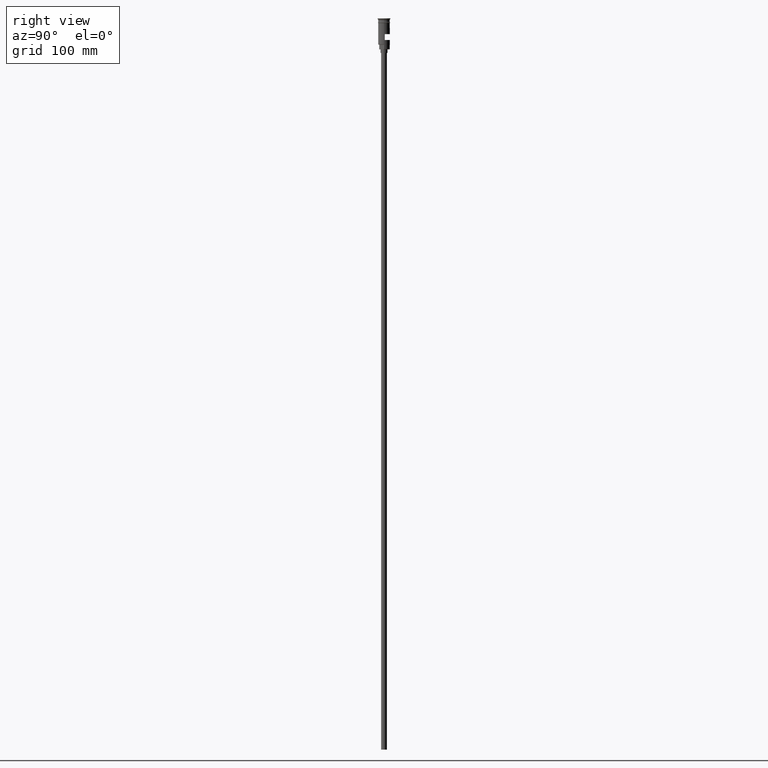
[diagram: clean part render]
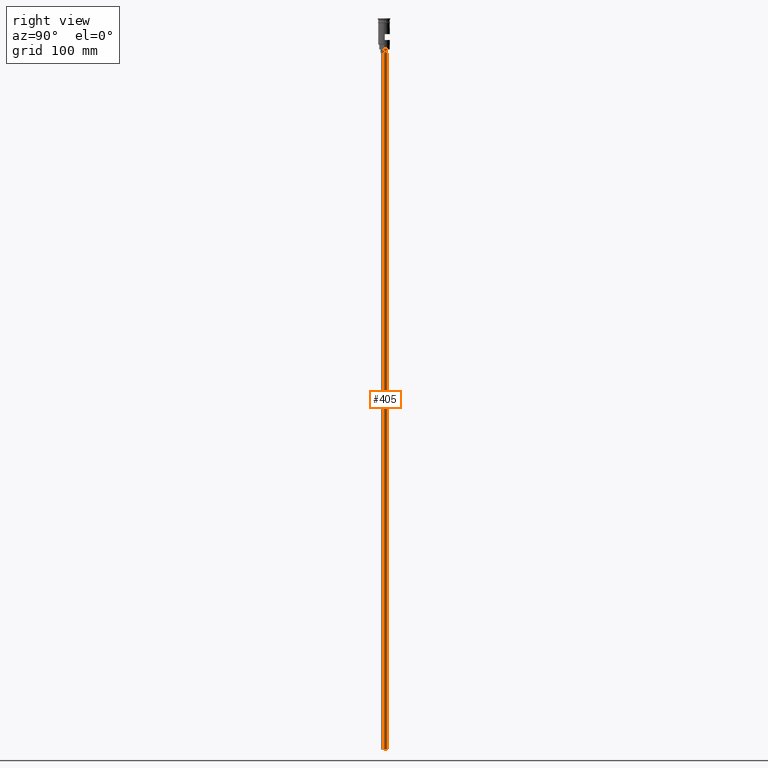
[diagram: same view with one face highlighted and labeled with its STEP entity id]
A machine part, right view. The second image highlights one B-rep face of the part: STEP entity #405.
In plain terms, the highlighted cylindrical surface (edge-blend (fillet) strip) has radius 2.5 mm, axis along (-0, -0, 1).
Its self-contained STEP definition (entity closure, byte-faithful):
#39 = DIRECTION ( 'NONE',  ( -1.000000000000000000, 0.000000000000000000, 0.000000000000000000 ) ) ;
#89 = ORIENTED_EDGE ( 'NONE', *, *, #1588, .F. ) ;
#100 = DIRECTION ( 'NONE',  ( -0.000000000000000000, -0.000000000000000000, 1.000000000000000000 ) ) ;
#105 = DIRECTION ( 'NONE',  ( -0.000000000000000000, -0.000000000000000000, 1.000000000000000000 ) ) ;
#227 = VERTEX_POINT ( 'NONE', #1146 ) ;
#243 = DIRECTION ( 'NONE',  ( -1.000000000000000000, 0.000000000000000000, 0.000000000000000000 ) ) ;
#307 = EDGE_LOOP ( 'NONE', ( #468, #1065, #1552, #89 ) ) ;
#405 = ADVANCED_FACE ( 'NONE', ( #1547 ), #1325, .T. ) ;
#443 = VERTEX_POINT ( 'NONE', #495 ) ;
#451 = CARTESIAN_POINT ( 'NONE',  ( -2.500000000000000000, 3.061616997868383141E-16, -626.5000000000000000 ) ) ;
#468 = ORIENTED_EDGE ( 'NONE', *, *, #918, .F. ) ;
#495 = CARTESIAN_POINT ( 'NONE',  ( -2.500000000000000000, 3.061616997868383141E-16, -626.5000000000000000 ) ) ;
#523 = VECTOR ( 'NONE', #105, 1000.000000000000000 ) ;
#591 = DIRECTION ( 'NONE',  ( 1.000000000000000000, 0.000000000000000000, 0.000000000000000000 ) ) ;
#601 = EDGE_CURVE ( 'NONE', #227, #1537, #1075, .T. ) ;
#618 = CARTESIAN_POINT ( 'NONE',  ( 2.500000000000000000, 0.000000000000000000, -626.5000000000000000 ) ) ;
#710 = AXIS2_PLACEMENT_3D ( 'NONE', #1213, #100, #591 ) ;
#735 = AXIS2_PLACEMENT_3D ( 'NONE', #986, #1355, #243 ) ;
#776 = DIRECTION ( 'NONE',  ( 0.000000000000000000, 0.000000000000000000, -1.000000000000000000 ) ) ;
#908 = CARTESIAN_POINT ( 'NONE',  ( 2.500000000000000000, 0.000000000000000000, -29.50000000000000000 ) ) ;
#918 = EDGE_CURVE ( 'NONE', #443, #1467, #950, .T. ) ;
#931 = LINE ( 'NONE', #1418, #1082 ) ;
#950 = CIRCLE ( 'NONE', #1236, 2.500000000000000000 ) ;
#986 = CARTESIAN_POINT ( 'NONE',  ( 0.000000000000000000, 0.000000000000000000, -29.50000000000000000 ) ) ;
#1065 = ORIENTED_EDGE ( 'NONE', *, *, #1373, .T. ) ;
#1075 = CIRCLE ( 'NONE', #735, 2.500000000000000000 ) ;
#1082 = VECTOR ( 'NONE', #1426, 1000.000000000000000 ) ;
#1146 = CARTESIAN_POINT ( 'NONE',  ( -2.500000000000000000, 3.061616997868383141E-16, -29.50000000000000000 ) ) ;
#1213 = CARTESIAN_POINT ( 'NONE',  ( 0.000000000000000000, 0.000000000000000000, -626.5000000000000000 ) ) ;
#1236 = AXIS2_PLACEMENT_3D ( 'NONE', #1391, #776, #39 ) ;
#1325 = CYLINDRICAL_SURFACE ( 'NONE', #710, 2.500000000000000000 ) ;
#1355 = DIRECTION ( 'NONE',  ( 0.000000000000000000, 0.000000000000000000, -1.000000000000000000 ) ) ;
#1373 = EDGE_CURVE ( 'NONE', #443, #227, #1559, .T. ) ;
#1391 = CARTESIAN_POINT ( 'NONE',  ( 0.000000000000000000, 0.000000000000000000, -626.5000000000000000 ) ) ;
#1418 = CARTESIAN_POINT ( 'NONE',  ( 2.500000000000000000, 0.000000000000000000, -626.5000000000000000 ) ) ;
#1426 = DIRECTION ( 'NONE',  ( -0.000000000000000000, -0.000000000000000000, 1.000000000000000000 ) ) ;
#1467 = VERTEX_POINT ( 'NONE', #618 ) ;
#1537 = VERTEX_POINT ( 'NONE', #908 ) ;
#1547 = FACE_OUTER_BOUND ( 'NONE', #307, .T. ) ;
#1552 = ORIENTED_EDGE ( 'NONE', *, *, #601, .T. ) ;
#1559 = LINE ( 'NONE', #451, #523 ) ;
#1588 = EDGE_CURVE ( 'NONE', #1467, #1537, #931, .T. ) ;